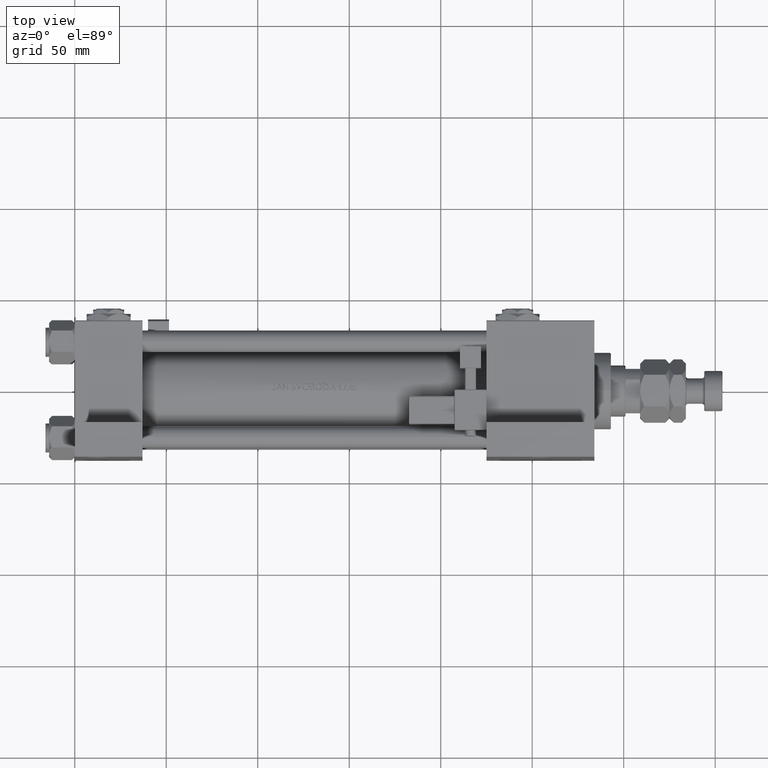
[diagram: clean part render]
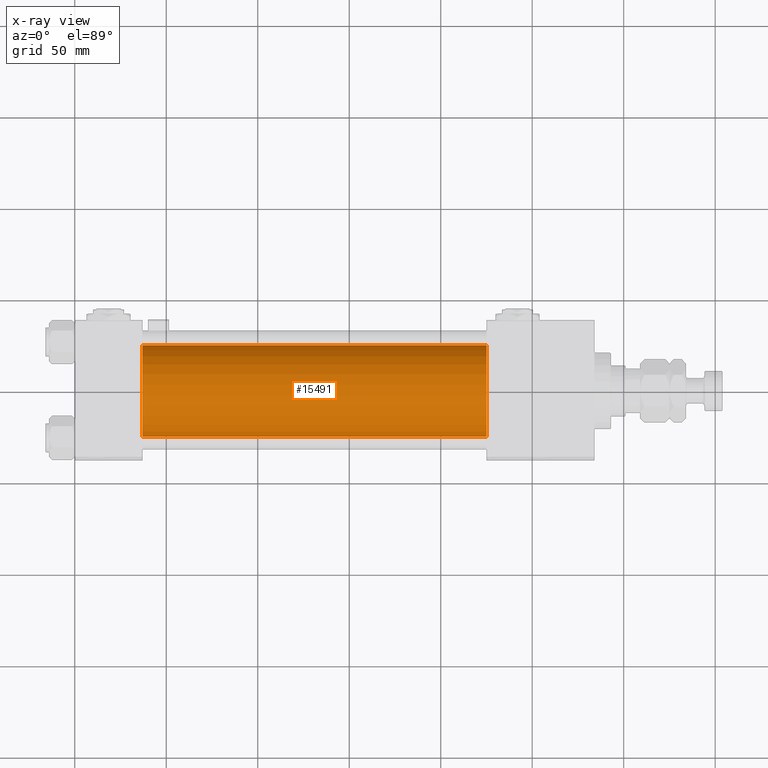
[diagram: x-ray — body ghosted, one internal face saturated and labeled with its STEP entity id]
A machine part, top view, then the same camera in x-ray: the body is ghosted and one INTERNAL B-rep face — a face not visible from any outside direction — is saturated and labeled: STEP entity #15491.
In plain terms, the highlighted cylindrical surface (partial cylindrical patch) has radius 25 mm, axis along (-1, -0, 0).
Its self-contained STEP definition (entity closure, byte-faithful):
#618 = VERTEX_POINT ( 'NONE', #34339 ) ;
#765 = VERTEX_POINT ( 'NONE', #15083 ) ;
#2803 = DIRECTION ( 'NONE',  ( 1.000000000000000000, 0.000000000000000000, 0.000000000000000000 ) ) ;
#8451 = EDGE_LOOP ( 'NONE', ( #49915, #33840, #10369, #46078 ) ) ;
#8529 = DIRECTION ( 'NONE',  ( -1.000000000000000000, -0.000000000000000000, -0.000000000000000000 ) ) ;
#9982 = FACE_OUTER_BOUND ( 'NONE', #8451, .T. ) ;
#10369 = ORIENTED_EDGE ( 'NONE', *, *, #30258, .F. ) ;
#10527 = CARTESIAN_POINT ( 'NONE',  ( 225.0000000000000000, 0.000000000000000000, -0.5000000000000004441 ) ) ;
#10784 = CARTESIAN_POINT ( 'NONE',  ( 225.0000000000000000, 0.000000000000000000, -0.5000000000000004441 ) ) ;
#11210 = EDGE_CURVE ( 'NONE', #24817, #765, #27496, .T. ) ;
#11400 = VECTOR ( 'NONE', #8529, 1000.000000000000000 ) ;
#13036 = DIRECTION ( 'NONE',  ( -1.000000000000000000, -0.000000000000000000, -0.000000000000000000 ) ) ;
#13168 = CARTESIAN_POINT ( 'NONE',  ( 37.00000000000000000, 3.061616997868383043E-15, -25.50000000000000355 ) ) ;
#13838 = EDGE_CURVE ( 'NONE', #24817, #618, #32848, .T. ) ;
#15083 = CARTESIAN_POINT ( 'NONE',  ( 225.0000000000000000, 3.061616997868383043E-15, -25.50000000000000355 ) ) ;
#15491 = ADVANCED_FACE ( 'NONE', ( #9982 ), #36189, .F. ) ;
#18568 = CARTESIAN_POINT ( 'NONE',  ( 37.00000000000000000, 0.000000000000000000, -0.5000000000000004441 ) ) ;
#19103 = DIRECTION ( 'NONE',  ( 0.000000000000000000, 0.000000000000000000, -1.000000000000000000 ) ) ;
#20108 = VERTEX_POINT ( 'NONE', #13168 ) ;
#21975 = DIRECTION ( 'NONE',  ( 1.000000000000000000, 0.000000000000000000, 0.000000000000000000 ) ) ;
#22518 = AXIS2_PLACEMENT_3D ( 'NONE', #10527, #27881, #44211 ) ;
#24797 = CARTESIAN_POINT ( 'NONE',  ( 225.0000000000000000, 3.061616997868383043E-15, -25.50000000000000355 ) ) ;
#24817 = VERTEX_POINT ( 'NONE', #47538 ) ;
#24918 = AXIS2_PLACEMENT_3D ( 'NONE', #10784, #21975, #38311 ) ;
#27496 = CIRCLE ( 'NONE', #24918, 25.00000000000000000 ) ;
#27881 = DIRECTION ( 'NONE',  ( -1.000000000000000000, -0.000000000000000000, -0.000000000000000000 ) ) ;
#30258 = EDGE_CURVE ( 'NONE', #618, #20108, #35659, .T. ) ;
#32848 = LINE ( 'NONE', #45168, #11400 ) ;
#33840 = ORIENTED_EDGE ( 'NONE', *, *, #43322, .T. ) ;
#34339 = CARTESIAN_POINT ( 'NONE',  ( 37.00000000000000000, 0.000000000000000000, 24.50000000000000000 ) ) ;
#35659 = CIRCLE ( 'NONE', #40780, 25.00000000000000000 ) ;
#36189 = CYLINDRICAL_SURFACE ( 'NONE', #22518, 25.00000000000000000 ) ;
#38311 = DIRECTION ( 'NONE',  ( 0.000000000000000000, 0.000000000000000000, -1.000000000000000000 ) ) ;
#40780 = AXIS2_PLACEMENT_3D ( 'NONE', #18568, #2803, #19103 ) ;
#41971 = VECTOR ( 'NONE', #13036, 1000.000000000000000 ) ;
#43322 = EDGE_CURVE ( 'NONE', #765, #20108, #49178, .T. ) ;
#44211 = DIRECTION ( 'NONE',  ( 0.000000000000000000, 0.000000000000000000, 1.000000000000000000 ) ) ;
#45168 = CARTESIAN_POINT ( 'NONE',  ( 225.0000000000000000, 0.000000000000000000, 24.50000000000000000 ) ) ;
#46078 = ORIENTED_EDGE ( 'NONE', *, *, #13838, .F. ) ;
#47538 = CARTESIAN_POINT ( 'NONE',  ( 225.0000000000000000, 0.000000000000000000, 24.50000000000000000 ) ) ;
#49178 = LINE ( 'NONE', #24797, #41971 ) ;
#49915 = ORIENTED_EDGE ( 'NONE', *, *, #11210, .T. ) ;